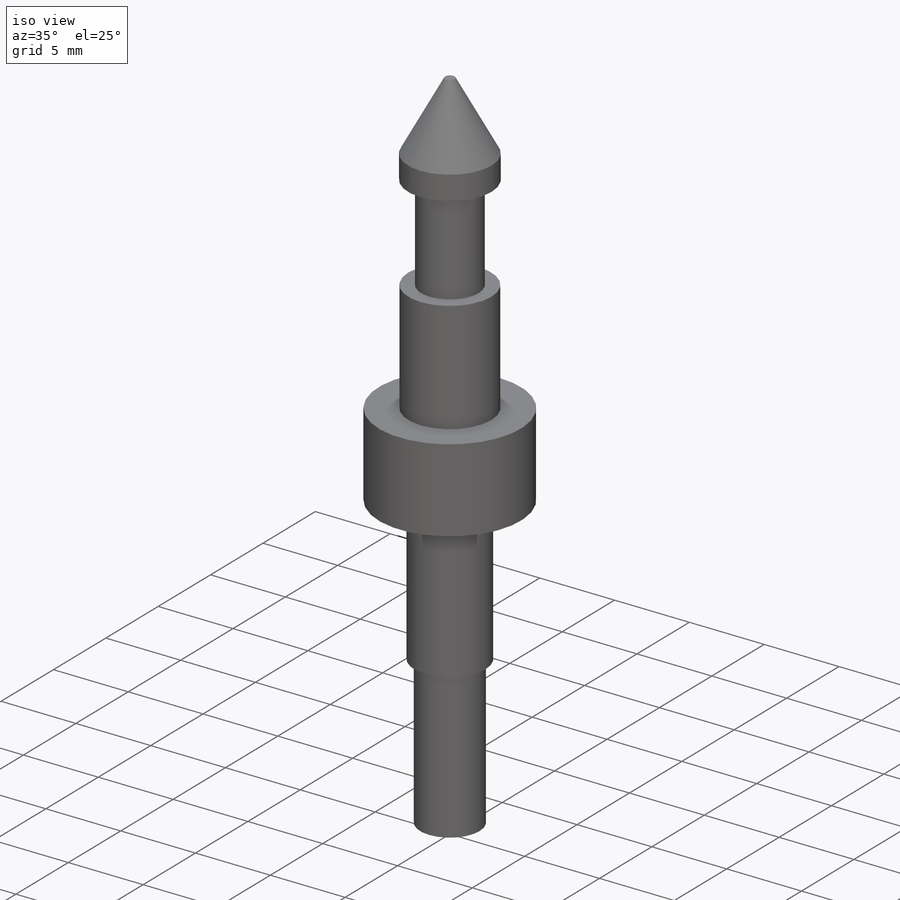
[diagram: iso view]
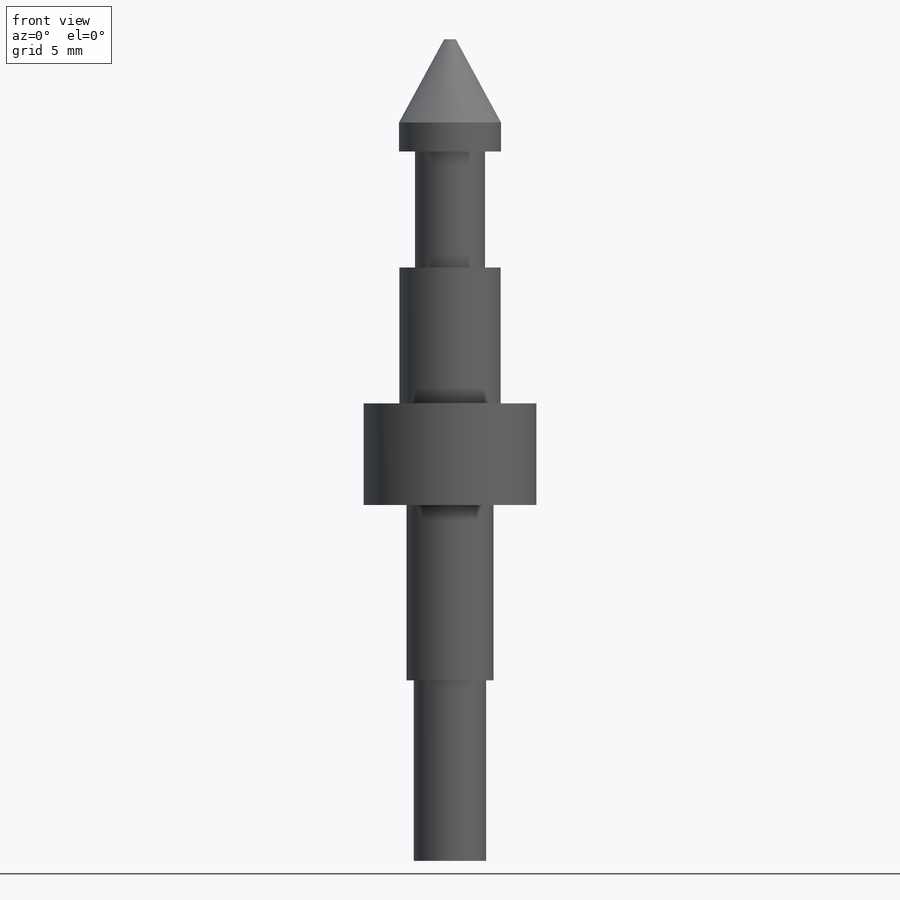
[diagram: front view]
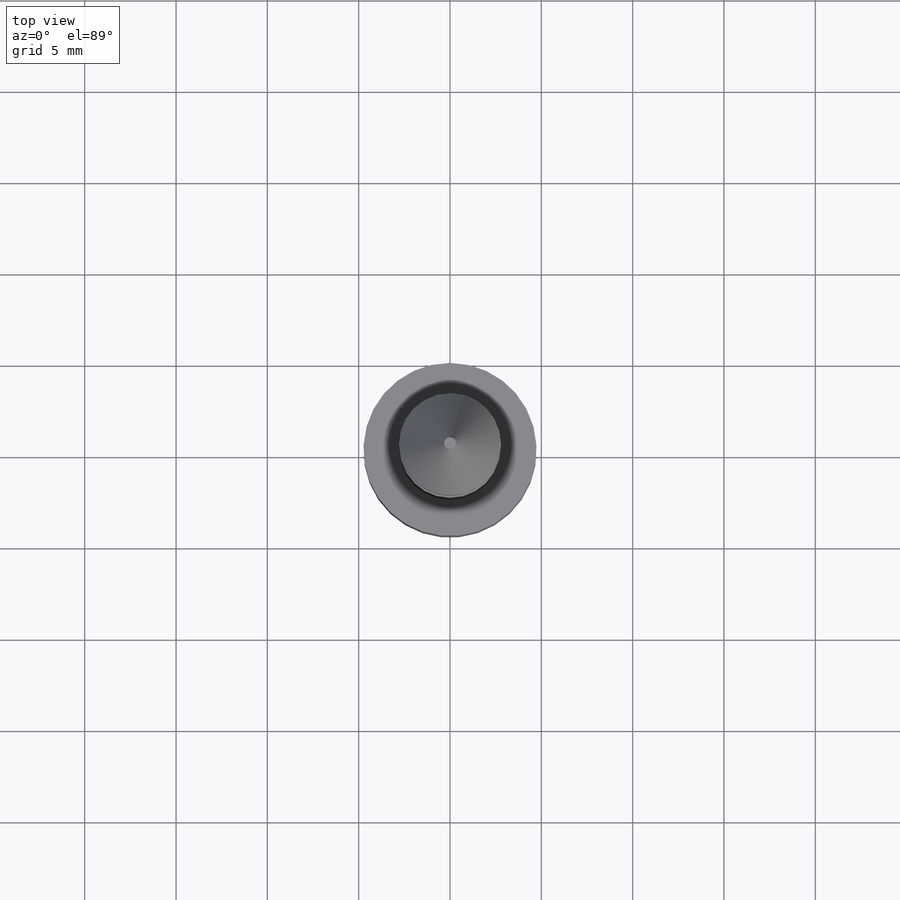
[diagram: top view]
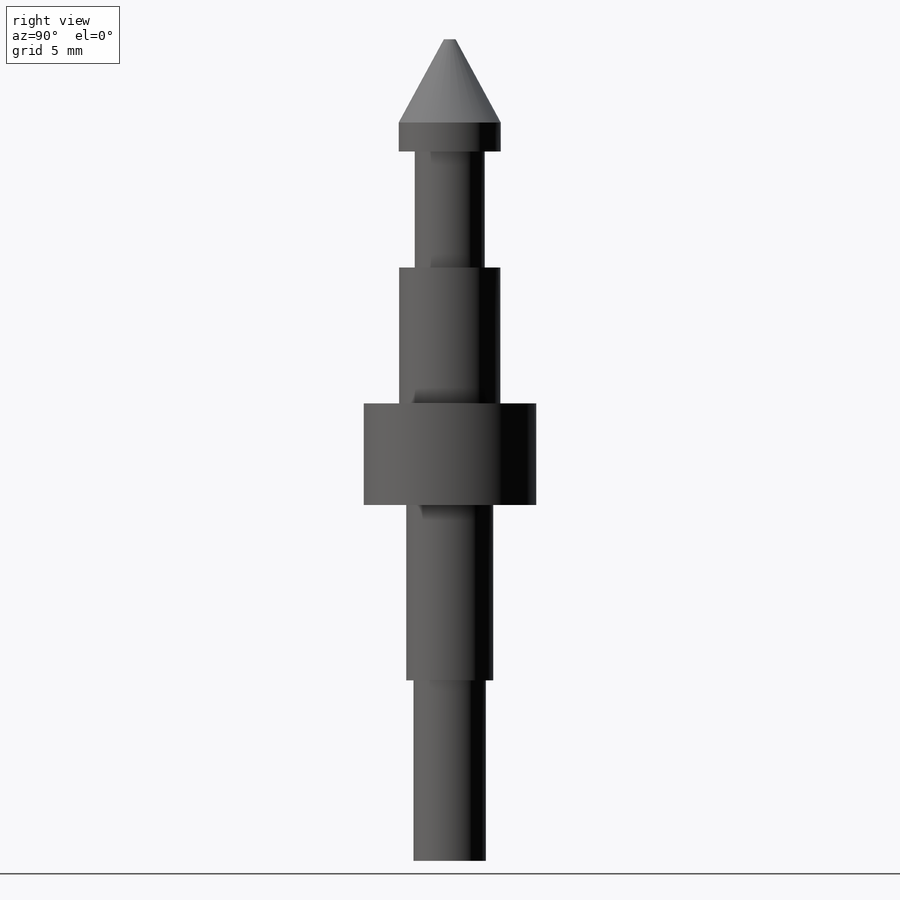
[diagram: right view]
SOLIDWORKS PART (.sldprt)
format: sldprt  version: not decoded by parser v0  size: 154,112 bytes
history: native  units: mm
features: sketch x3, revolve x2, material x1, plane x1 (+12 scaffold rows collapsed)
feature tree (19):
  scaffold x12  (default folders/planes/origin — collapsed)
  material  "Material <not specified>"
  sketch  "Sketch1"  dims[c1.D1=19.4818mm c1.D2=13.0048mm c1.D3=6.35mm c1.D4=1.5875mm c1.D5=25.5016mm c1.D6=5.588mm c1.D7=0.635mm c1.D8=3.8354mm c1.D9=5.5372mm c1.D10=4.7625mm c2.D2=9.8806mm c2.D11=3.9624mm c2.D12=9.4742mm c2.D13=5.5626mm c2.D14=13.0048mm]
  revolve  "Revolve1"  Angle=360deg
  plane  "Plane1"  Offset=3.175mm
  sketch  "Sketch3"  dims[D1=1.524mm]
  revolve  "Revolve2-Mini_Post_Rubber_supress"  Angle=360deg
  sketch  "Sketch4"  dims[D1=8.0772mm]
decode coverage: 5 of 5 modeling features carry decoded parameters
note: suppression state not decoded; provenance and decode notes live in map.json
